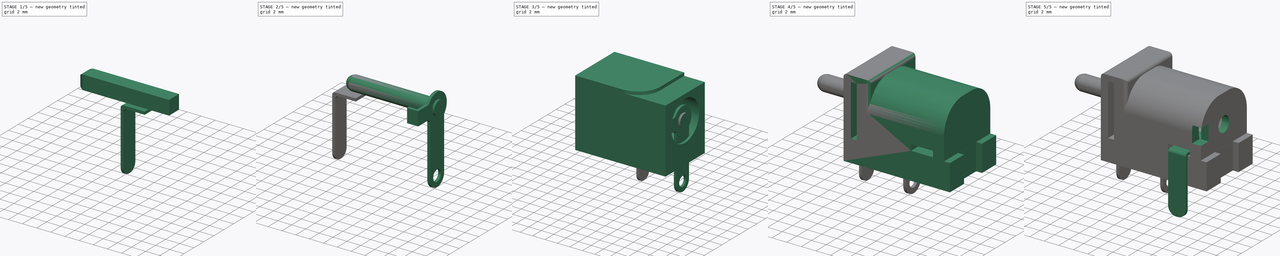
[diagram: build sequence overview — one tinted view per stage of 5, left to right]
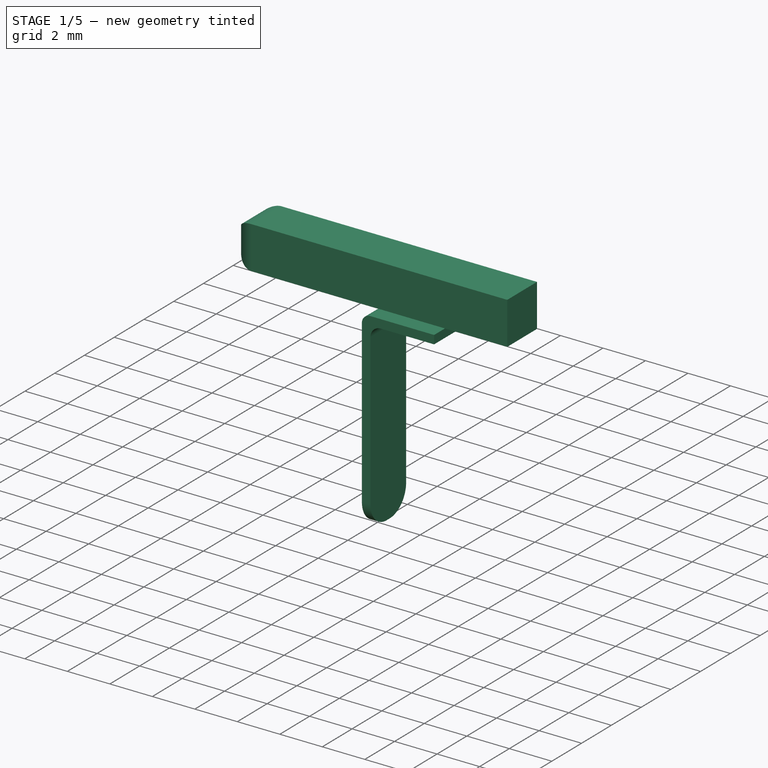
[diagram: stage 1 of 5 — iso view after this stage's code; geometry added in this stage tinted green]
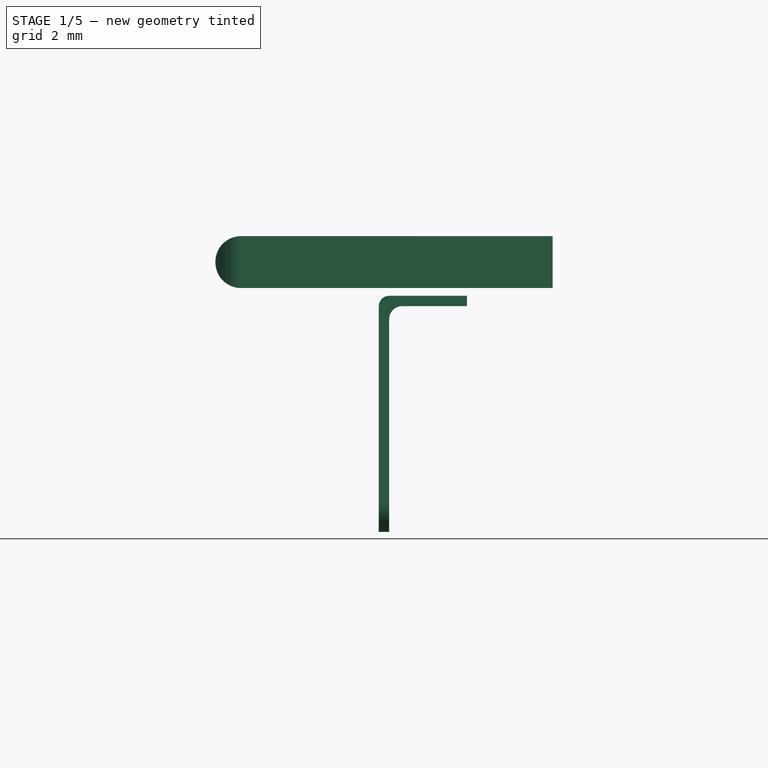
[diagram: stage 1 of 5 — front view after this stage's code; geometry added in this stage tinted green]
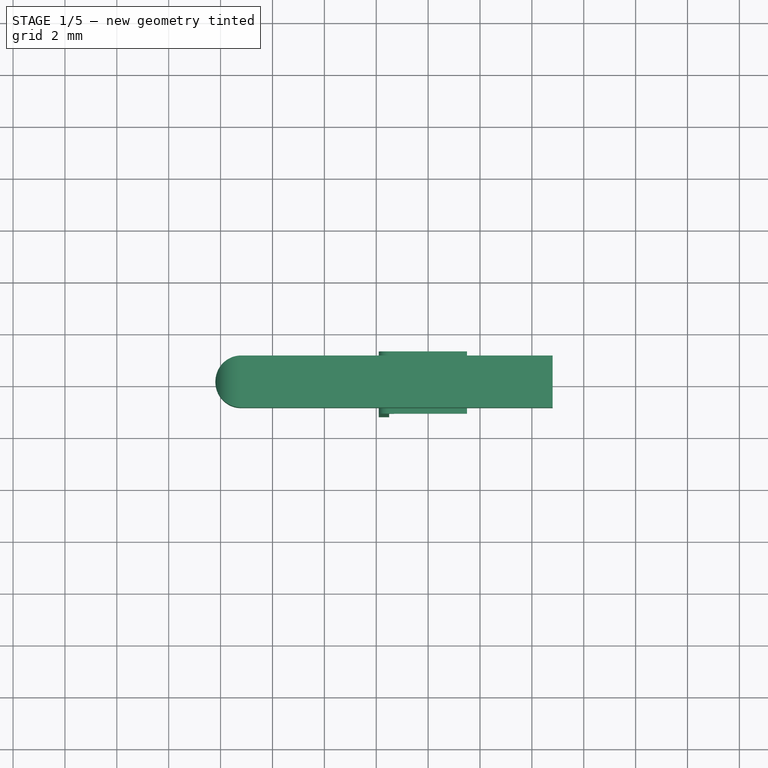
[diagram: stage 1 of 5 — top view after this stage's code; geometry added in this stage tinted green]
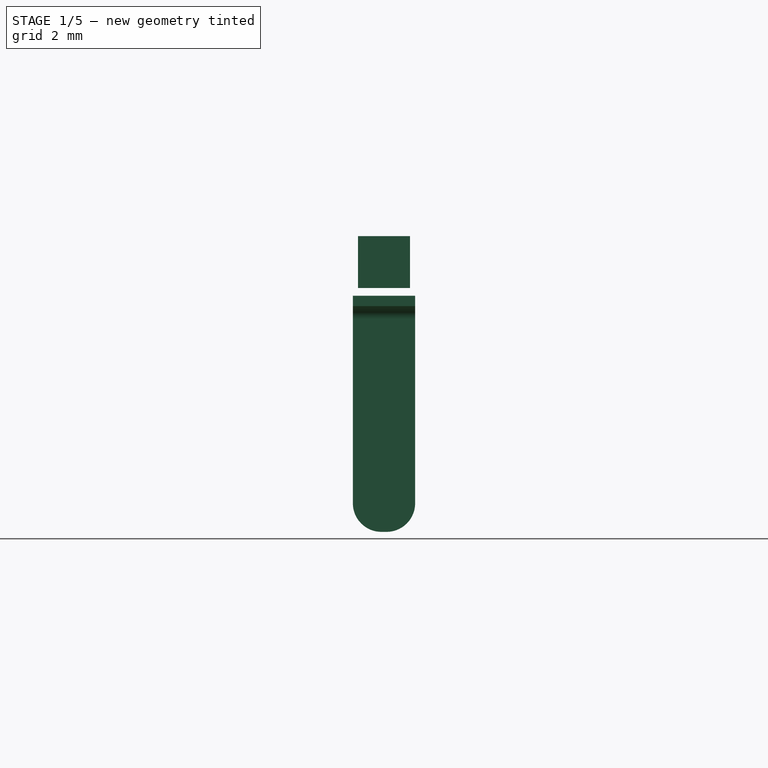
[diagram: stage 1 of 5 — right view after this stage's code; geometry added in this stage tinted green]
FCSTD DOCUMENT  (FreeCAD 0.19R24291 (Git))
Label: KLDX-0202-A
License: All rights reserved
LicenseURL: http://en.wikipedia.org/wiki/All_rights_reserved
objects: PartDesign::AdditiveBox×12, PartDesign::Fillet×12, PartDesign::SubtractiveBox×8, PartDesign::SubtractiveCylinder×6, PartDesign::AdditiveCylinder×4, PartDesign::Body×4, Sketcher::SketchObject×1, App::Part×1
note: 89 computed .brp shape members not serialized (recipe doc carries the construction recipe); baked Part::Feature solids carry a one-line shape summary decoded from their .brp

FEATURE [PartDesign::AdditiveBox] Box006
  AttacherType = Attacher::AttachEngine3D
  AttachmentOffset = pos=(-6.5,-1,5.4) rot=(0,0,1;0rad)
  Height = 2
  Length = 13
  MapMode = 5
  Placement = pos=(-14.2,-1,5.4) rot=(0,0,1;0rad)
  Support = -> [XY_Plane001]
  Width = 2
FEATURE [PartDesign::Fillet] Fillet004
  Base = -> Box006 [Edge2,Edge4,Edge3,Edge1]
  BaseFeature = -> Box006
  Placement = pos=(-14.2,-1,5.4) rot=(0,0,1;0rad)
  Radius = 0.99
  SupportTransform = false
FEATURE [PartDesign::Body] Body
  Group = -> [Sketch,Box,Box001,Cylinder,Fillet,Fillet001,Box002,Box003,Box004,Box005,Fillet002,Fillet003,Box011,Cylinder005,Cylinder006,Box013]
  Origin = -> Origin
  Placement = pos=(-7.7,0,0) rot=(0,0,1;0rad)
  Tip = -> Box013
FEATURE [PartDesign::AdditiveBox] Box015
  AttacherType = Attacher::AttachEngine3D
  AttachmentOffset = pos=(9.5,-12.6,-4) rot=(0,0,1;0rad)
  Height = 9.1
  Length = 2.4
  MapMode = 5
  Placement = pos=(-7.9,1.2,-4) rot=(0,0,-1;1.5708rad)
  Support = -> [XY_Plane003]
  Width = 0.4
FEATURE [PartDesign::AdditiveBox] Box016
  AttacherType = Attacher::AttachEngine3D
  AttachmentOffset = pos=(-12.2,4.7,9.5) rot=(0,0,1;0rad)
  BaseFeature = -> Box015
  Height = 2.4
  Length = 3
  MapMode = 5
  Placement = pos=(9.5,-12.2,4.7) rot=(0.57735,0.57735,0.57735;2.0944rad)
  Support = -> [YZ_Plane003]
  Width = 0.4
FEATURE [PartDesign::Fillet] Fillet010
  Base = -> Box016 [Edge5,Edge17]
  BaseFeature = -> Box016
  Placement = pos=(-7.5,1.2,4.7) rot=(1,0,0;1.5708rad)
  Radius = 1.1
  SupportTransform = false
FEATURE [PartDesign::AdditiveBox] Box014
  AttacherType = Attacher::AttachEngine3D
  AttachmentOffset = pos=(9.5,-12.55,4.4) rot=(-1,0,0;0.785398rad)
  BaseFeature = -> Fillet010
  Height = 0.85
  Length = 2.4
  MapMode = 5
  Placement = pos=(-7.85,1.2,4.4) rot=(-0.357407,0.357407,-0.862856;1.71777rad)
  Support = -> [XY_Plane003]
  Width = 0.4
FEATURE [PartDesign::SubtractiveCylinder] Cylinder007
  Angle = 360
  AttacherType = Attacher::AttachEngine3D
  AttachmentOffset = pos=(9.5,-11.7,4.2) rot=(0.57735,0.57735,0.57735;2.0944rad)
  BaseFeature = -> Box014
  Height = 2.4
  MapMode = 5
  Placement = pos=(-7,1.2,4.2) rot=(1,0,0;1.5708rad)
  Radius = 0.5
  Support = -> [XY_Plane003]
FEATURE [PartDesign::Body] Body001  label="Pin1"
  Group = -> [Box006,Fillet004,Fillet005,Box007,Cylinder001,Fillet006,Cylinder003,Cylinder004,Box012,Cylinder008,Box017,Box018,Cylinder009,Box019,Fillet011]
  Origin = -> Origin001
  Placement = pos=(-7.7,0,0) rot=(0,0,1;0rad)
  Tip = -> Fillet011
FEATURE [PartDesign::Fillet] Fillet012
  Base = -> Cylinder007 [Edge13]
  BaseFeature = -> Cylinder007
  Placement = pos=(-7,1.2,4.2) rot=(1,0,0;1.5708rad)
  Radius = 0.399
  SupportTransform = false
FEATURE [PartDesign::Body] Body003  label="Pin003"
  Group = -> [Box015,Box016,Fillet010,Box014,Cylinder007,Fillet012]
  Origin = -> Origin003
  Placement = pos=(4.7,10.7,0) rot=(0,0,-1;1.5708rad)
  Tip = -> Fillet012
FEATURE [App::Part] Part
  Group = -> [Body,Body001,Body002,Body003]
  Origin = -> Origin004
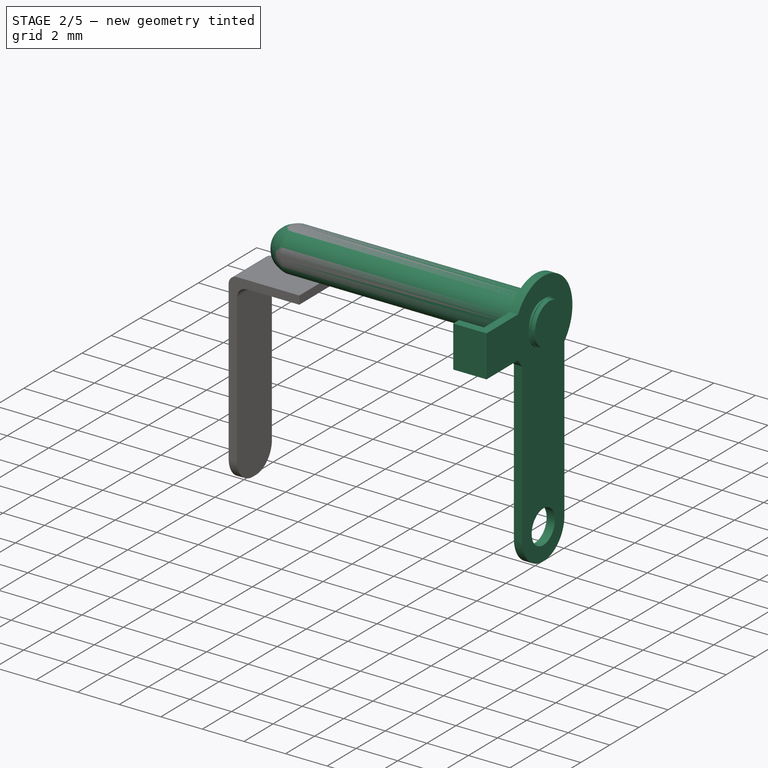
[diagram: stage 2 of 5 — iso view after this stage's code; geometry added in this stage tinted green]
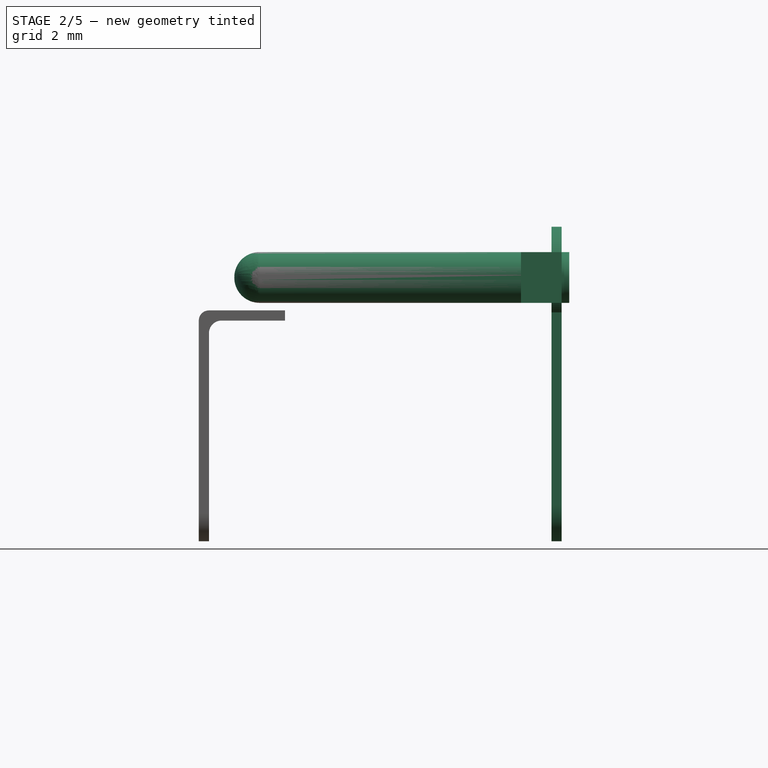
[diagram: stage 2 of 5 — front view after this stage's code; geometry added in this stage tinted green]
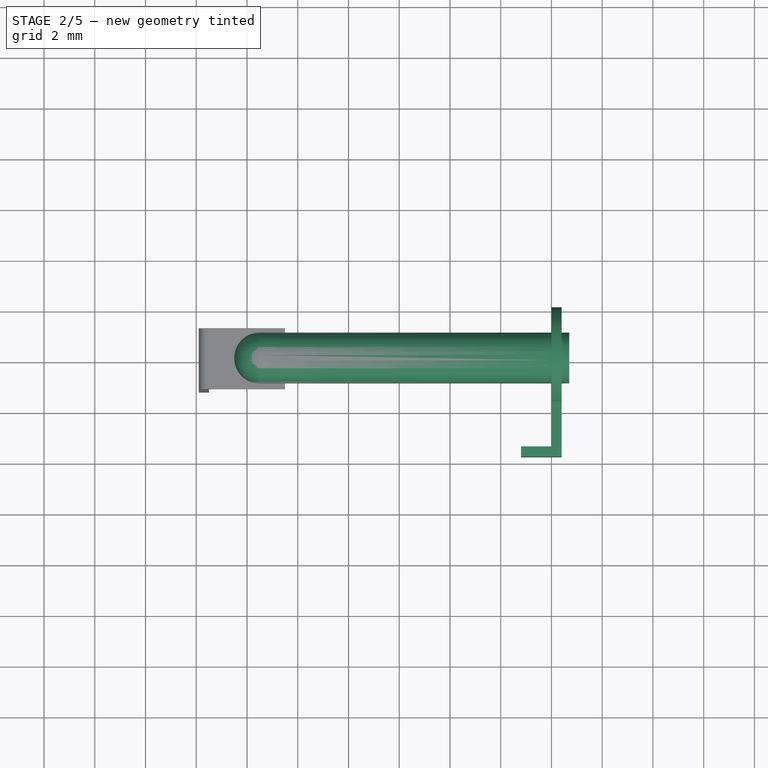
[diagram: stage 2 of 5 — top view after this stage's code; geometry added in this stage tinted green]
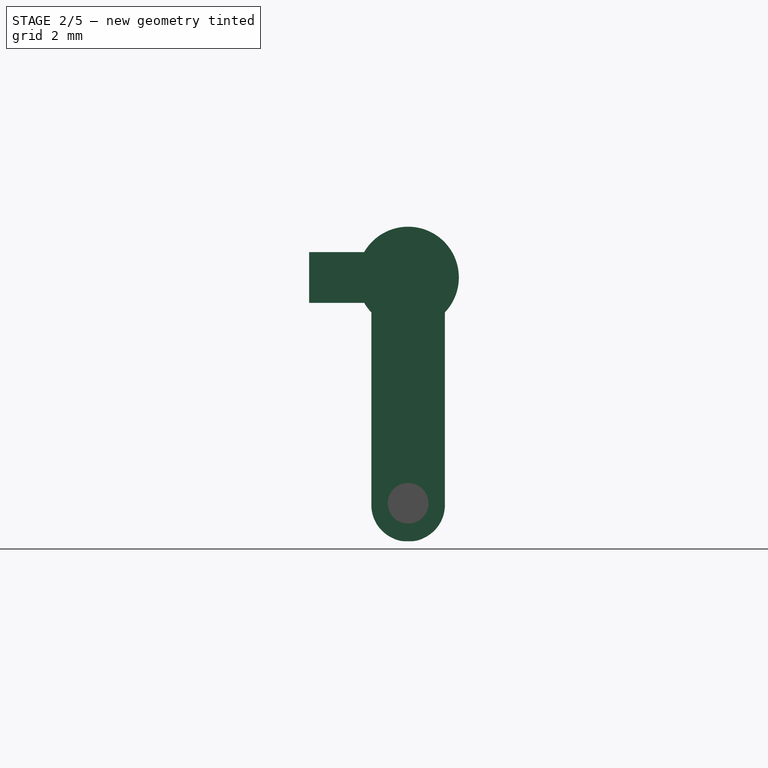
[diagram: stage 2 of 5 — right view after this stage's code; geometry added in this stage tinted green]
FEATURE [PartDesign::Fillet] Fillet005
  Base = -> Fillet004 [Edge15,Edge16,Edge13,Edge18]
  BaseFeature = -> Fillet004
  Placement = pos=(-14.2,-1,5.4) rot=(0,0,1;0rad)
  Radius = 0.9
  SupportTransform = false
FEATURE [PartDesign::AdditiveBox] Box007
  AttacherType = Attacher::AttachEngine3D
  AttachmentOffset = pos=(6,-1.45,-4) rot=(0,0,1;0rad)
  BaseFeature = -> Fillet005
  Height = 10.3
  Length = 0.4
  MapMode = 5
  Placement = pos=(6,-1.45,-4) rot=(0,0,1;0rad)
  Support = -> [XY_Plane001]
  Width = 2.9
FEATURE [PartDesign::AdditiveCylinder] Cylinder001
  Angle = 360
  AttacherType = Attacher::AttachEngine3D
  AttachmentOffset = pos=(0,6.4,6) rot=(0,0,1;0rad)
  BaseFeature = -> Box007
  Height = 0.4
  MapMode = 5
  Placement = pos=(6,1e-16,6.4) rot=(0.57735,0.57735,0.57735;2.0944rad)
  Radius = 1.45
  Support = -> [YZ_Plane001]
FEATURE [PartDesign::Fillet] Fillet006
  Base = -> Cylinder001 [Edge67,Edge86]
  BaseFeature = -> Cylinder001
  Placement = pos=(-1.7,1e-16,6.4) rot=(0.57735,0.57735,0.57735;2.0944rad)
  Radius = 1.43
  SupportTransform = false
FEATURE [PartDesign::AdditiveCylinder] Cylinder003
  Angle = 360
  AttacherType = Attacher::AttachEngine3D
  AttachmentOffset = pos=(6.4,0,6.4) rot=(0,1,0;1.5708rad)
  BaseFeature = -> Fillet006
  Height = 0.3
  MapMode = 5
  Placement = pos=(-1.3,0,6.4) rot=(0,1,0;1.5708rad)
  Radius = 1
  Support = -> [XY_Plane001]
FEATURE [PartDesign::AdditiveCylinder] Cylinder004
  Angle = 360
  AttacherType = Attacher::AttachEngine3D
  AttachmentOffset = pos=(6,0,6.4) rot=(0,1,0;1.5708rad)
  BaseFeature = -> Cylinder003
  Height = 0.4
  MapMode = 5
  Placement = pos=(-1.7,0,6.4) rot=(0,1,0;1.5708rad)
  Radius = 2
  Support = -> [XY_Plane001]
FEATURE [PartDesign::AdditiveBox] Box012
  AttacherType = Attacher::AttachEngine3D
  AttachmentOffset = pos=(6,-3.5,5.4) rot=(0,0,1;0rad)
  BaseFeature = -> Cylinder004
  Height = 2
  Length = 0.4
  MapMode = 5
  Placement = pos=(-1.7,-3.5,5.4) rot=(0,0,1;0rad)
  Support = -> [XY_Plane001]
  Width = 2.5
FEATURE [PartDesign::SubtractiveCylinder] Cylinder008
  Angle = 360
  AttacherType = Attacher::AttachEngine3D
  AttachmentOffset = pos=(5.8,0,-2.5) rot=(0,1,0;1.5708rad)
  BaseFeature = -> Box012
  Height = 1
  MapMode = 5
  Placement = pos=(-1.9,0,-2.5) rot=(0,1,0;1.5708rad)
  Radius = 0.8
  Support = -> [XY_Plane001]
FEATURE [PartDesign::AdditiveBox] Box017
  AttacherType = Attacher::AttachEngine3D
  AttachmentOffset = pos=(4.8,-3.9,5.4) rot=(0,0,1;0rad)
  BaseFeature = -> Cylinder008
  Height = 2
  Length = 1.6
  MapMode = 5
  Placement = pos=(-2.9,-3.9,5.4) rot=(0,0,1;0rad)
  Support = -> [XY_Plane001]
  Width = 0.4
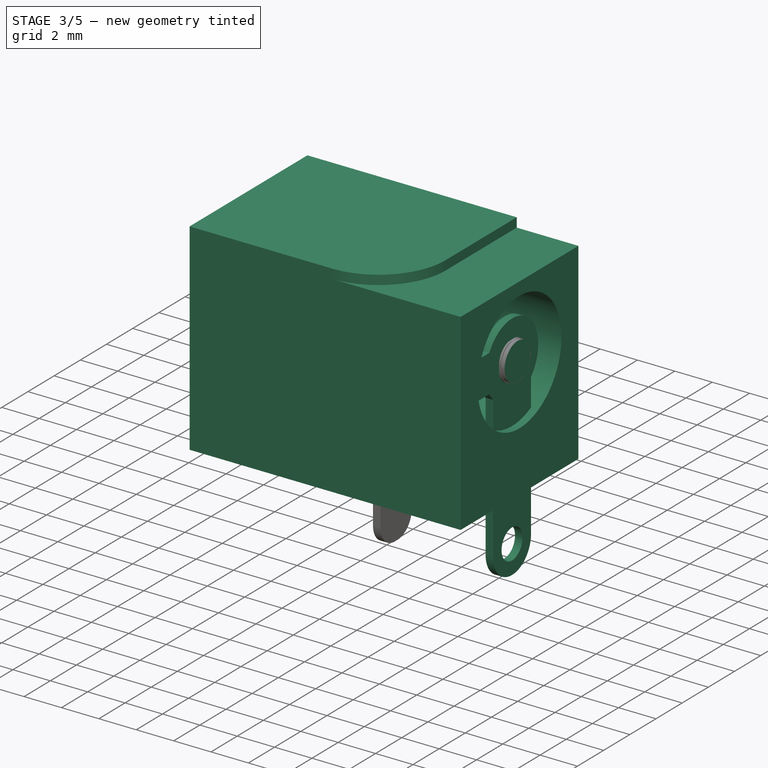
[diagram: stage 3 of 5 — iso view after this stage's code; geometry added in this stage tinted green]
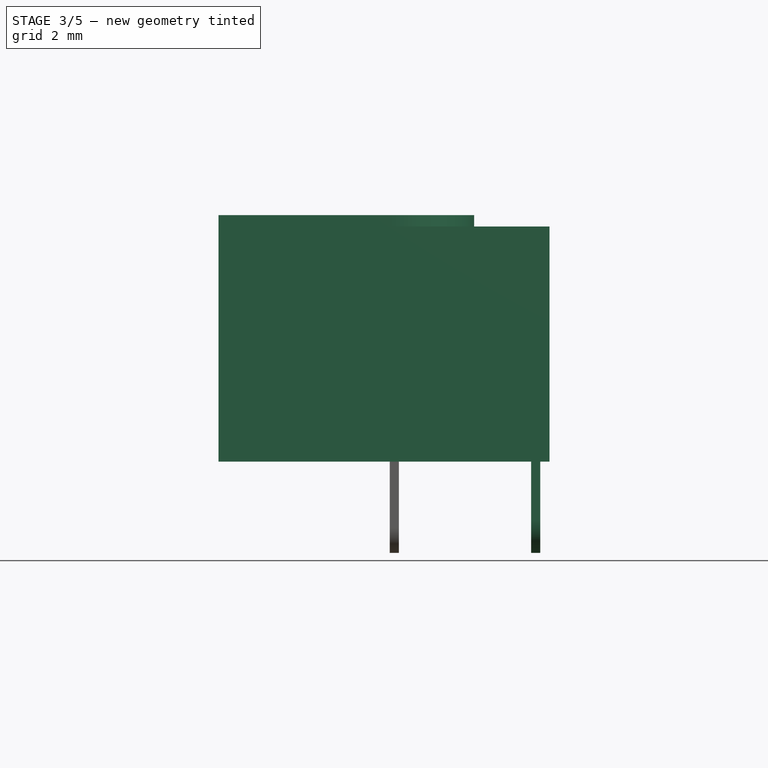
[diagram: stage 3 of 5 — front view after this stage's code; geometry added in this stage tinted green]
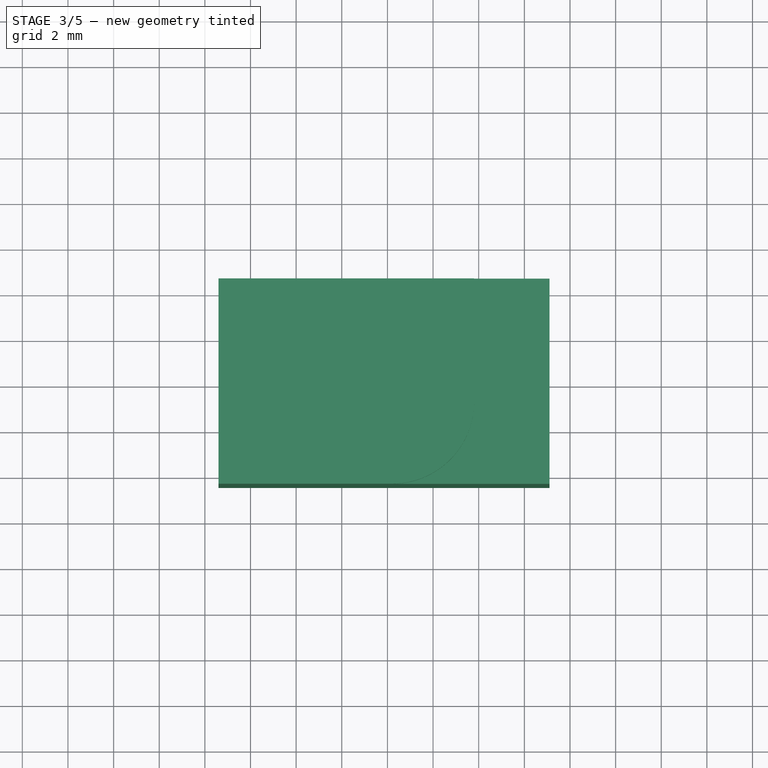
[diagram: stage 3 of 5 — top view after this stage's code; geometry added in this stage tinted green]
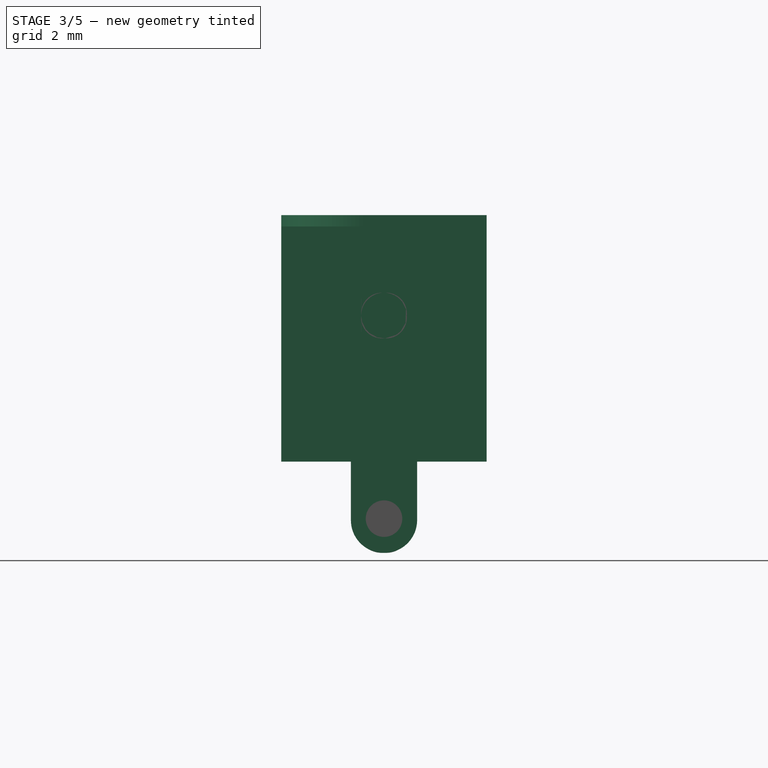
[diagram: stage 3 of 5 — right view after this stage's code; geometry added in this stage tinted green]
FEATURE [Sketcher::SketchObject] Sketch
  FullyConstrained = false
  MapMode = 5
  Placement = pos=(-15.4,0,0) rot=(0,0,1;0rad)
  Support = -> [XY_Plane]
  sketch-geometry (4):
    g0: LineSegment StartX=0 StartY=4.5 StartZ=0 EndX=14.554 EndY=4.5 EndZ=0
    g1: LineSegment StartX=14.554 StartY=4.5 StartZ=0 EndX=14.554 EndY=-4.5 EndZ=0
    g2: LineSegment StartX=14.554 StartY=-4.5 StartZ=0 EndX=0 EndY=-4.5 EndZ=0
    g3: LineSegment StartX=0 StartY=-4.5 StartZ=0 EndX=0 EndY=4.5 EndZ=0
  constraints (9):
    c: Coincident(g0,g1)
    c: Coincident(g1,g2)
    c: Coincident(g2,g3)
    c: Coincident(g3,g0)
    c: Horizontal(g0)
    c: Horizontal(g2)
    c: Vertical(g1)
    c: Vertical(g3)
    c: PointOnObject(g0,g-2)
FEATURE [PartDesign::AdditiveBox] Box
  AttacherType = Attacher::AttachEngine3D
  AttachmentOffset = pos=(0,-4.5,0) rot=(0,0,1;0rad)
  Height = 10.8
  Length = 14.5
  MapMode = 5
  Placement = pos=(-15.4,-4.5,0) rot=(0,0,1;0rad)
  Support = -> [XY_Plane]
  Width = 9
FEATURE [PartDesign::SubtractiveBox] Box001
  AttacherType = Attacher::AttachEngine3D
  AttachmentOffset = pos=(-4.2,-4.5,10.3) rot=(0,0,1;0rad)
  BaseFeature = -> Box
  Height = 0.5
  Length = 11
  MapMode = 5
  Placement = pos=(-4.2,-4.5,10.3) rot=(0,0,1;0rad)
  Support = -> [XY_Plane]
  Width = 9
FEATURE [PartDesign::SubtractiveCylinder] Cylinder
  Angle = 360
  AttacherType = Attacher::AttachEngine3D
  AttachmentOffset = pos=(0,6.4,-8.1) rot=(0,0,1;0rad)
  BaseFeature = -> Box001
  Height = 14.1
  MapMode = 5
  Placement = pos=(-8.1,3.2e-15,6.4) rot=(0.57735,0.57735,0.57735;2.0944rad)
  Radius = 3.2
  Support = -> [YZ_Plane]
FEATURE [PartDesign::Fillet] Fillet
  Base = -> Cylinder [Edge7]
  BaseFeature = -> Cylinder
  Placement = pos=(-8.1,3.2e-15,6.4) rot=(0.57735,0.57735,0.57735;2.0944rad)
  Radius = 3.6
  SupportTransform = false
FEATURE [PartDesign::AdditiveBox] Box018  label="bend-fill"
  AttacherType = Attacher::AttachEngine3D
  AttachmentOffset = pos=(5.8,-3.85,5.4) rot=(0,0,1;0.785398rad)
  BaseFeature = -> Box017
  Height = 2
  Length = 0.8
  MapMode = 5
  Placement = pos=(-1.9,-3.85,5.4) rot=(0,0,1;0.785398rad)
  Support = -> [XY_Plane001]
  Width = 0.3
FEATURE [PartDesign::SubtractiveCylinder] Cylinder009
  Angle = 360
  AttacherType = Attacher::AttachEngine3D
  AttachmentOffset = pos=(5.72,-3.22,5.4) rot=(0,0,1;0rad)
  BaseFeature = -> Box018
  Height = 2
  MapMode = 5
  Placement = pos=(-1.98,-3.22,5.4) rot=(0,0,1;0rad)
  Radius = 0.28
  Support = -> [XY_Plane001]
FEATURE [PartDesign::SubtractiveBox] Box019
  AttacherType = Attacher::AttachEngine3D
  AttachmentOffset = pos=(5.99973,-3.22583,5.4) rot=(0,0,-1;0.436332rad)
  BaseFeature = -> Cylinder009
  Height = 2
  Length = 0.0002
  MapMode = 5
  Placement = pos=(-1.70027,-3.22583,5.4) rot=(0,0,-1;0.436332rad)
  Support = -> [XY_Plane001]
  Width = 0.0002
FEATURE [PartDesign::Fillet] Fillet011
  Base = -> Box019 [Edge174]
  BaseFeature = -> Box019
  Placement = pos=(-1.70027,-3.22583,5.4) rot=(0,0,-1;0.436332rad)
  Radius = 0.3996
  SupportTransform = false
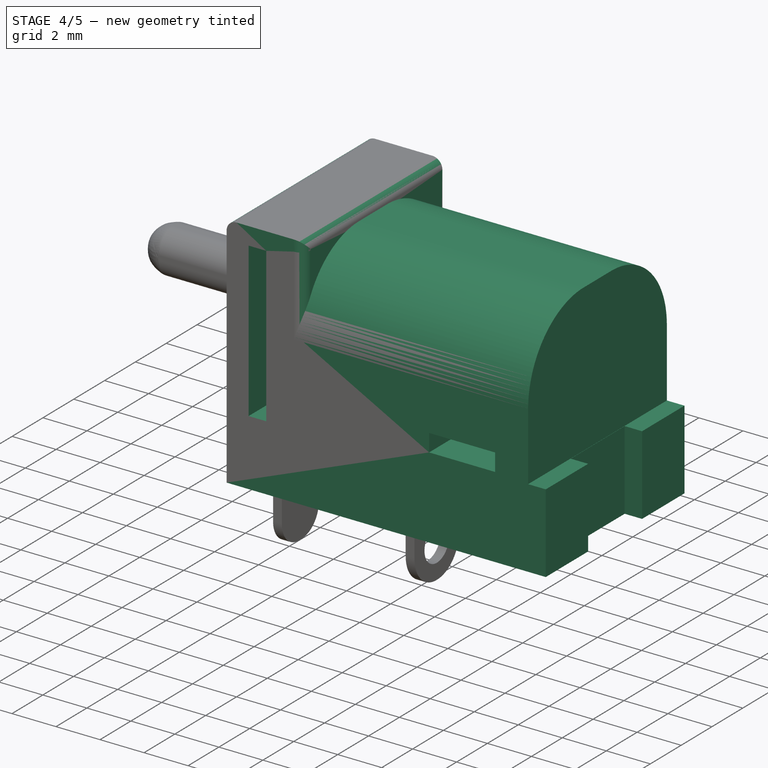
[diagram: stage 4 of 5 — iso view after this stage's code; geometry added in this stage tinted green]
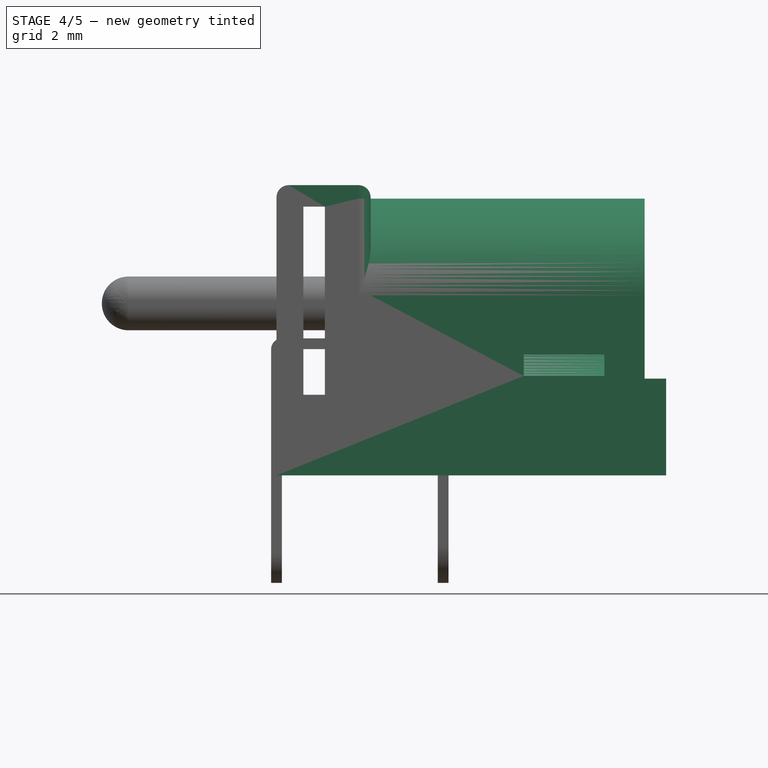
[diagram: stage 4 of 5 — front view after this stage's code; geometry added in this stage tinted green]
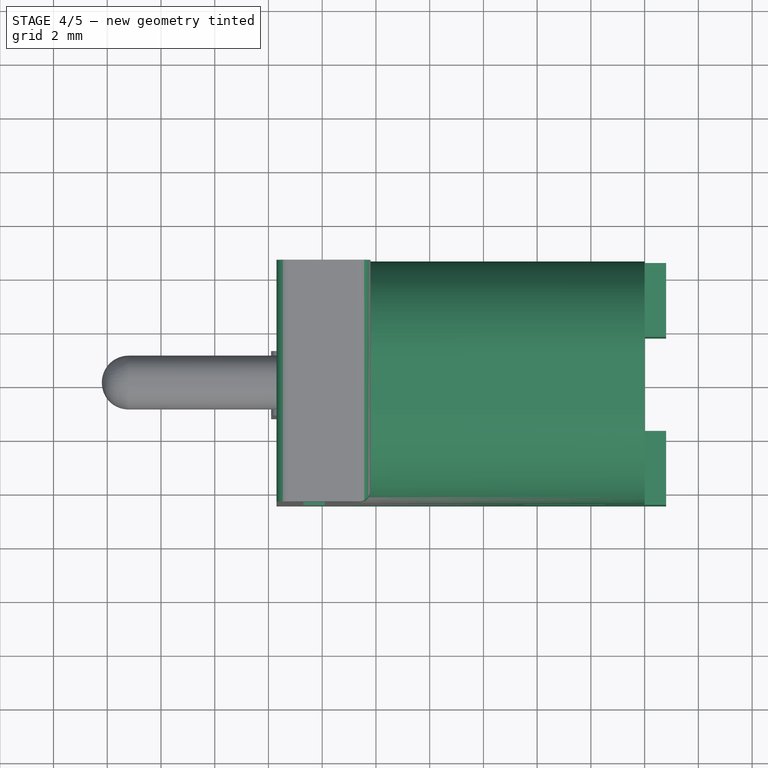
[diagram: stage 4 of 5 — top view after this stage's code; geometry added in this stage tinted green]
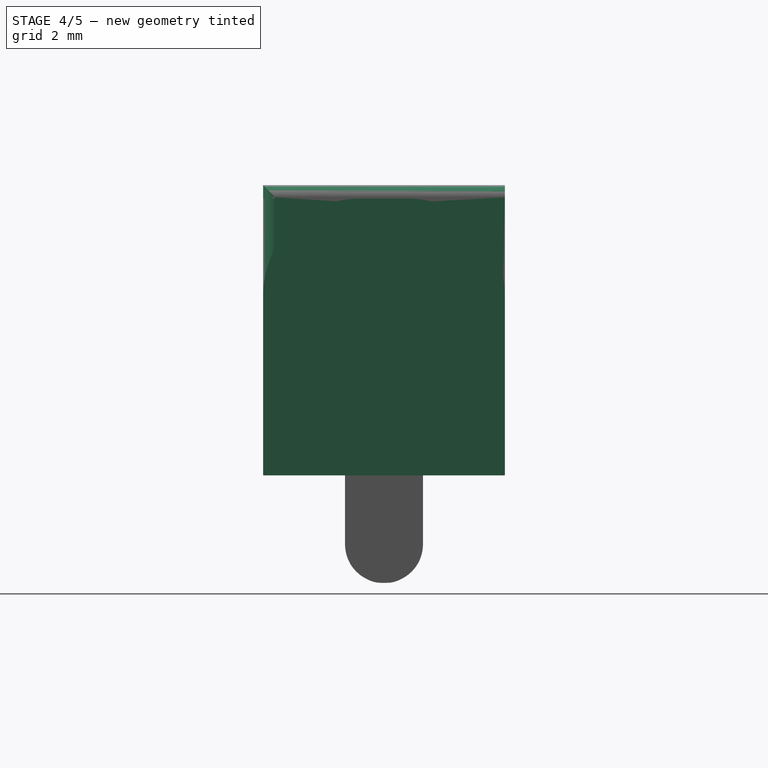
[diagram: stage 4 of 5 — right view after this stage's code; geometry added in this stage tinted green]
FEATURE [PartDesign::Fillet] Fillet001
  Base = -> Fillet [Edge23]
  BaseFeature = -> Fillet
  Placement = pos=(-8.1,3.2e-15,6.4) rot=(0.57735,0.57735,0.57735;2.0944rad)
  Radius = 3.6
  SupportTransform = false
FEATURE [PartDesign::SubtractiveBox] Box002  label="back-slice"
  AttacherType = Attacher::AttachEngine3D
  AttachmentOffset = pos=(6,-6,3.6) rot=(0,0,1;0rad)
  BaseFeature = -> Fillet001
  Height = 7.2
  Length = 0.85
  MapMode = 5
  Placement = pos=(6,-6,3.6) rot=(0,0,1;0rad)
  Support = -> [XY_Plane]
  Width = 12
FEATURE [PartDesign::SubtractiveBox] Box003  label="leg-cut"
  AttacherType = Attacher::AttachEngine3D
  AttachmentOffset = pos=(-0.4,-1.5,0) rot=(0,0,1;0rad)
  BaseFeature = -> Box002
  Height = 5
  Length = 0.8
  MapMode = 5
  Placement = pos=(-0.4,-1.5,0) rot=(0,0,1;0rad)
  Support = -> [XY_Plane]
  Width = 3
FEATURE [PartDesign::SubtractiveBox] Box004  label="leg-cut2"
  AttacherType = Attacher::AttachEngine3D
  AttachmentOffset = pos=(6.01,-1.75,0) rot=(0,0,1;0rad)
  BaseFeature = -> Box003
  Height = 5
  Length = 0.8
  MapMode = 5
  Placement = pos=(6.01,-1.75,0) rot=(0,0,1;0rad)
  Support = -> [XY_Plane]
  Width = 3.5
FEATURE [PartDesign::SubtractiveBox] Box005  label="leg-cut3"
  AttacherType = Attacher::AttachEngine3D
  AttachmentOffset = pos=(1.5,-5,3.7) rot=(0,0,1;0rad)
  BaseFeature = -> Box004
  Height = 0.8
  Length = 3
  MapMode = 5
  Placement = pos=(1.5,-5,3.7) rot=(0,0,1;0rad)
  Support = -> [XY_Plane]
  Width = 5
FEATURE [PartDesign::Fillet] Fillet002
  Base = -> Box005 [Edge45]
  BaseFeature = -> Box005
  Placement = pos=(-6.2,-5,3.7) rot=(0,0,1;0rad)
  Radius = 0.45
  SupportTransform = false
FEATURE [PartDesign::Fillet] Fillet003
  Base = -> Fillet002 [Edge12,Edge19,Edge20]
  BaseFeature = -> Fillet002
  Placement = pos=(-6.2,-5,3.7) rot=(0,0,1;0rad)
  Radius = 0.45
  SupportTransform = false
FEATURE [PartDesign::Body] Body002  label="Pin2"
  Group = -> [Box008,Box009,Fillet007,Fillet008,Box010,Cylinder002]
  Origin = -> Origin002
  Placement = pos=(-7.7,0,0) rot=(0,0,1;0rad)
  Tip = -> Cylinder002
FEATURE [PartDesign::SubtractiveBox] Box011
  AttacherType = Attacher::AttachEngine3D
  AttachmentOffset = pos=(-6.7,-5,3) rot=(0,0,1;0rad)
  BaseFeature = -> Fillet003
  Height = 7
  Length = 0.8
  MapMode = 5
  Placement = pos=(-14.4,-5,3) rot=(0,0,1;0rad)
  Support = -> [XY_Plane]
  Width = 10
FEATURE [PartDesign::AdditiveCylinder] Cylinder005  label="back-wall-fill"
  Angle = 360
  AttacherType = Attacher::AttachEngine3D
  AttachmentOffset = pos=(5,0,6.4) rot=(0,1,0;1.5708rad)
  BaseFeature = -> Box011
  Height = 1
  MapMode = 5
  Placement = pos=(-2.7,0,6.4) rot=(0,1,0;1.5708rad)
  Radius = 3.2
  Support = -> [XY_Plane]
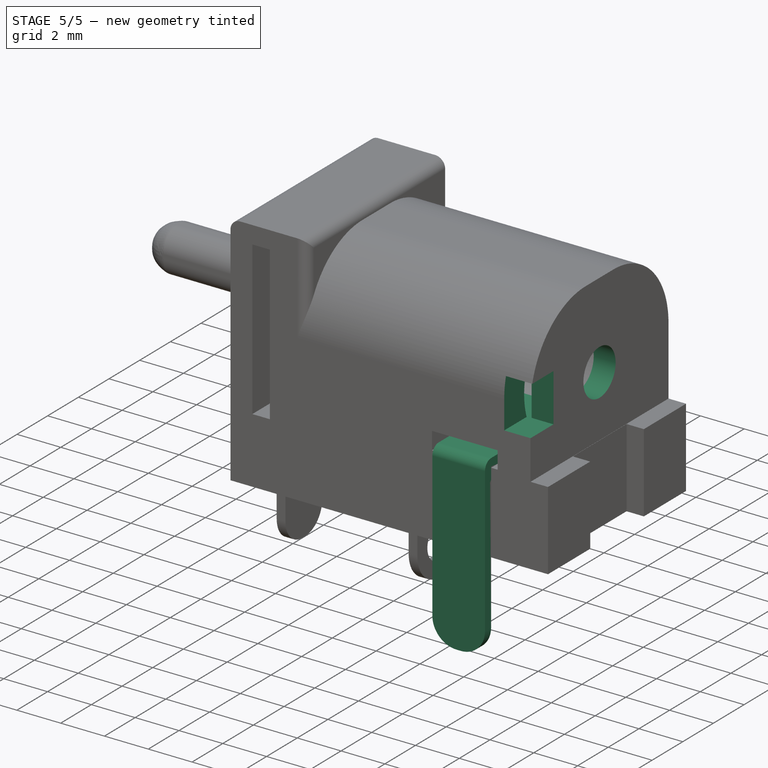
[diagram: stage 5 of 5 — iso view after this stage's code; geometry added in this stage tinted green]
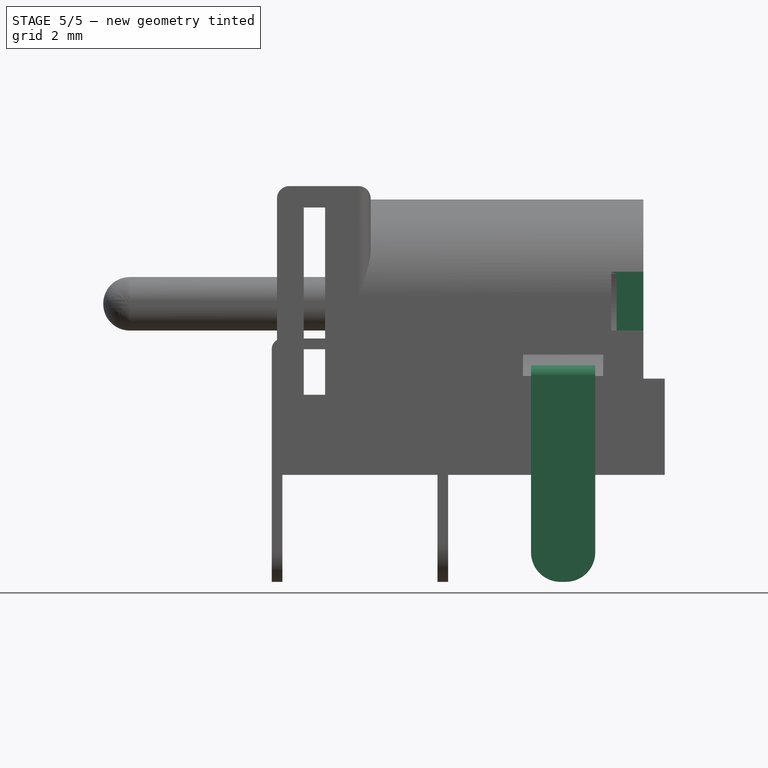
[diagram: stage 5 of 5 — front view after this stage's code; geometry added in this stage tinted green]
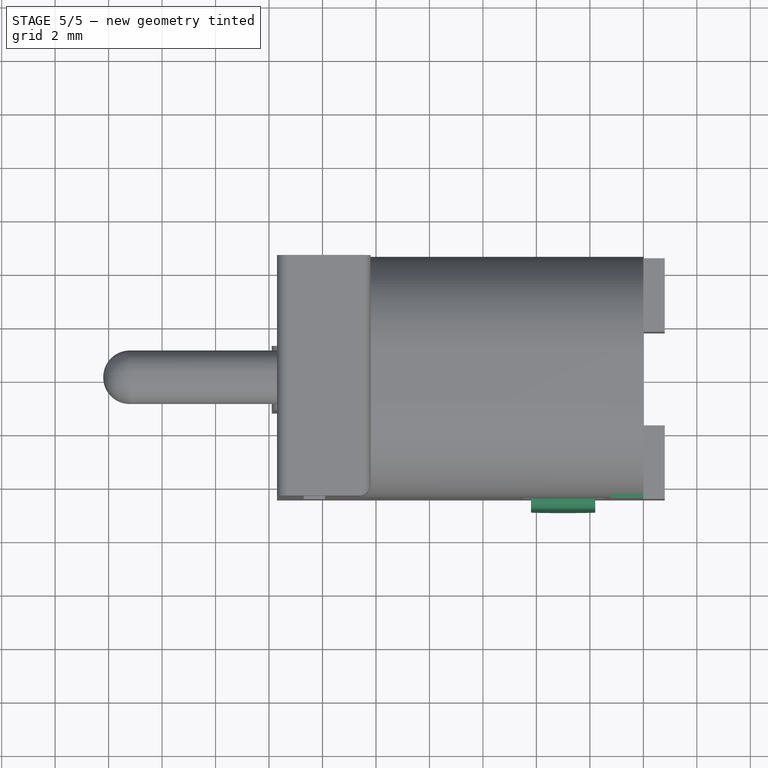
[diagram: stage 5 of 5 — top view after this stage's code; geometry added in this stage tinted green]
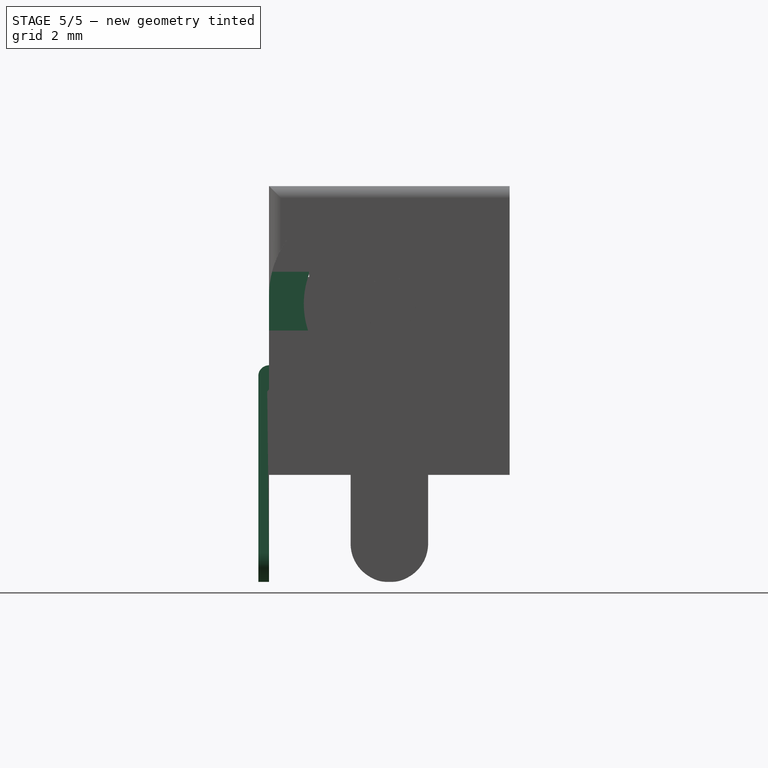
[diagram: stage 5 of 5 — right view after this stage's code; geometry added in this stage tinted green]
FEATURE [PartDesign::AdditiveBox] Box008
  AttacherType = Attacher::AttachEngine3D
  AttachmentOffset = pos=(1.8,-4.9,-4) rot=(0,0,1;0rad)
  Height = 8.1
  Length = 2.4
  MapMode = 5
  Placement = pos=(-5.9,-4.9,-4) rot=(0,0,1;0rad)
  Support = -> [XY_Plane002]
  Width = 0.4
FEATURE [PartDesign::AdditiveBox] Box009
  AttacherType = Attacher::AttachEngine3D
  AttachmentOffset = pos=(-4.5,3.7,1.8) rot=(0,0,1;0rad)
  BaseFeature = -> Box008
  Height = 2.4
  Length = 5.4
  MapMode = 5
  Placement = pos=(1.8,-4.5,3.7) rot=(0.57735,0.57735,0.57735;2.0944rad)
  Support = -> [YZ_Plane002]
  Width = 0.4
FEATURE [PartDesign::Fillet] Fillet007
  Base = -> Box009 [Edge5,Edge17]
  BaseFeature = -> Box009
  Placement = pos=(-5.9,-4.5,3.7) rot=(0.57735,0.57735,0.57735;2.0944rad)
  Radius = 1.1
  SupportTransform = false
FEATURE [PartDesign::Fillet] Fillet008
  Base = -> Fillet007 [Edge10]
  BaseFeature = -> Fillet007
  Placement = pos=(-5.9,-4.5,3.7) rot=(0.57735,0.57735,0.57735;2.0944rad)
  Radius = 0.399
  SupportTransform = false
FEATURE [PartDesign::AdditiveBox] Box010
  AttacherType = Attacher::AttachEngine3D
  AttachmentOffset = pos=(1.8,-4.85,3.4) rot=(-1,0,0;0.785398rad)
  BaseFeature = -> Fillet008
  Height = 0.85
  Length = 2.4
  MapMode = 5
  Placement = pos=(-5.9,-4.85,3.4) rot=(-1,0,0;0.785398rad)
  Support = -> [XY_Plane002]
  Width = 0.4
FEATURE [PartDesign::SubtractiveCylinder] Cylinder002
  Angle = 360
  AttacherType = Attacher::AttachEngine3D
  AttachmentOffset = pos=(1.8,-4,3.2015) rot=(0.57735,0.57735,0.57735;2.0944rad)
  BaseFeature = -> Box010
  Height = 2.4
  MapMode = 5
  Placement = pos=(-5.9,-4,3.2015) rot=(0.57735,0.57735,0.57735;2.0944rad)
  Radius = 0.5
  Support = -> [XY_Plane002]
FEATURE [PartDesign::SubtractiveCylinder] Cylinder006
  Angle = 360
  AttacherType = Attacher::AttachEngine3D
  AttachmentOffset = pos=(4.8,0,6.4) rot=(0,1,0;1.5708rad)
  BaseFeature = -> Cylinder005
  Height = 1.2
  MapMode = 5
  Placement = pos=(-2.9,0,6.4) rot=(0,1,0;1.5708rad)
  Radius = 1.05
  Support = -> [XY_Plane]
FEATURE [PartDesign::SubtractiveBox] Box013
  AttacherType = Attacher::AttachEngine3D
  AttachmentOffset = pos=(4.8,-4.5,5.4) rot=(0,0,1;0rad)
  BaseFeature = -> Cylinder006
  Height = 2.2
  Length = 1.2
  MapMode = 5
  Placement = pos=(-2.9,-4.5,5.4) rot=(0,0,1;0rad)
  Support = -> [XY_Plane]
  Width = 1.5
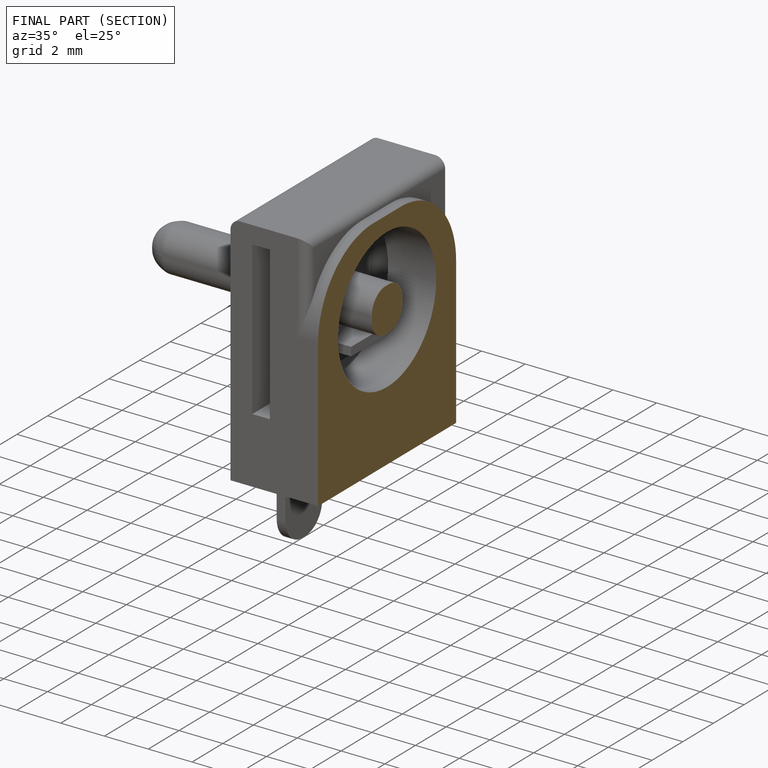
[diagram: finished part — half-section view (interior)]
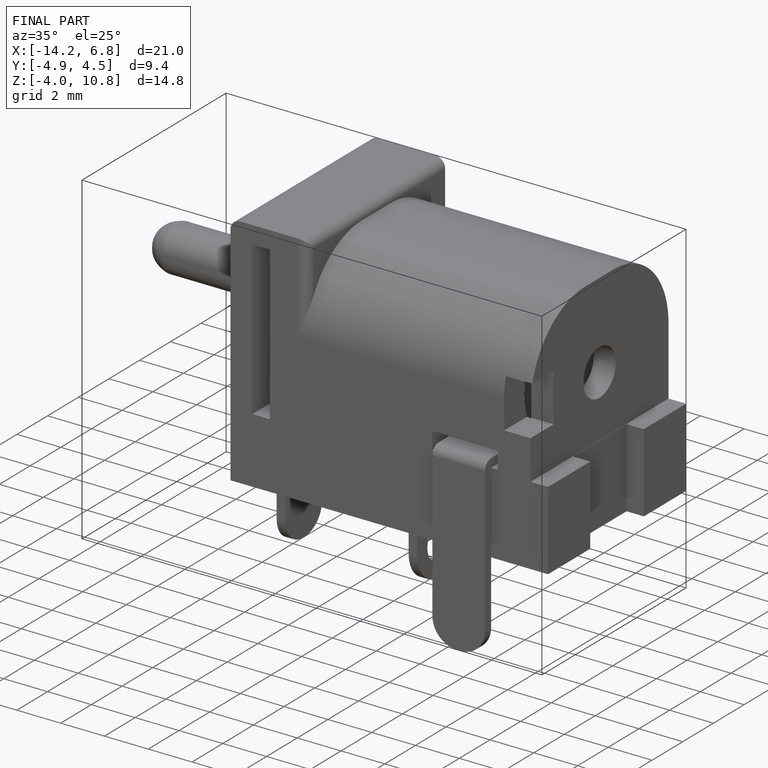
[diagram: finished part — iso view with bounding-box wireframe]
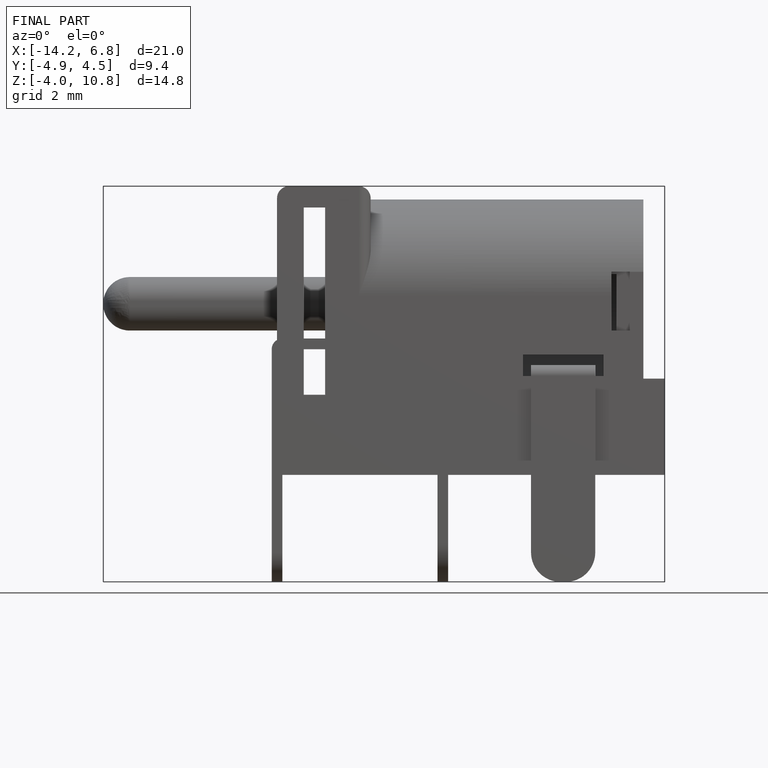
[diagram: finished part — front view with bounding-box wireframe]
